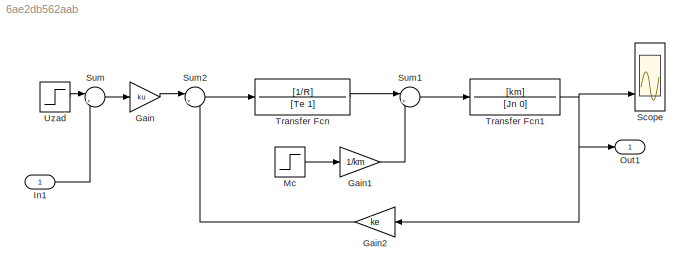
MODEL slx_6ae2db562aab
KIND model
CONFIG AbsTol = auto
CONFIG EnableMultiTasking = off
CONFIG FixedStep = auto
CONFIG MaxStep = auto
CONFIG MinStep = auto
CONFIG RelTol = 1e-3
CONFIG SampleTimeConstraint = Unconstrained
CONFIG SolverName = VariableStepAuto
CONFIG StartTime = 0.0
CONFIG StopTime = 0.3
BLOCK [Gain] Gain
  Gain = ku
BLOCK [Gain] Gain1
  Gain = 1/km
BLOCK [Gain] Gain2
  Gain = ke
  NameLocation = top
BLOCK [Inport] In1
BLOCK [Step] Mc
  After = 0
  SampleTime = 0
  Time = 0
BLOCK [Outport] Out1
BLOCK [Scope] Scope
  Floating = off
  NumInputPorts = 3
  Ports = [3]
  ScopeSpecificationString = Simulink.scopes.TimeScopeBlockCfg('CurrentConfiguration', extmgr.ConfigurationSet(extmgr.Configuration('Core','General UI',true,'FigureColor',[1 1 1]),extmgr.Configuration('Core','Source UI',true),extmgr.Configuration('Sources','WiredSimulink',true),extmgr.Configuration('Visuals','Time Domain',true,'SerializedDisplays',{struct('MinYLimReal','-7.80389','MaxYLimReal','70.23501','YLabelReal','','MinY...<+1672ch>
BLOCK [Sum] Sum
  Inputs = |++
  Ports = [2, 1]
BLOCK [Sum] Sum1
  Inputs = |+-
  Ports = [2, 1]
BLOCK [Sum] Sum2
  Inputs = |+-
  Ports = [2, 1]
BLOCK [TransferFcn] Transfer Fcn
  Denominator = [Te 1]
  Numerator = [1/R]
BLOCK [TransferFcn] Transfer Fcn1
  Denominator = [Jn 0]
  Numerator = [km]
BLOCK [Step] Uzad
  SampleTime = 0
  Time = 0
LINE Gain1:1 -> Sum1:2
LINE Gain2:1 -> Sum2:2
LINE Gain:1 -> Sum2:1
LINE In1:1 -> Sum:2
LINE Mc:1 -> Gain1:1
LINE Sum1:1 -> Transfer Fcn1:1
LINE Sum2:1 -> Transfer Fcn:1
LINE Sum:1 -> Gain:1
NET Transfer Fcn1:1 -> Gain2:1, Out1:1, Scope:3
LINE Transfer Fcn:1 -> Sum1:1
LINE Uzad:1 -> Sum:1
note: NET lines group one-source signal fan-out (src -> all destinations, sorted); 1:1 wires keep LINE
